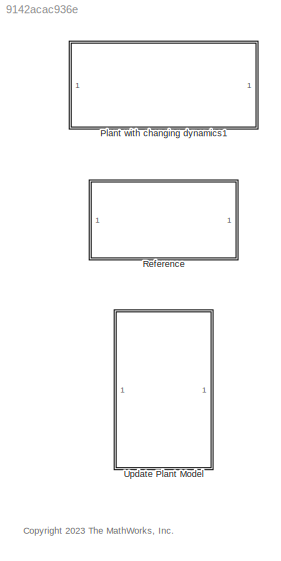
MODEL slx_9142acac936e
KIND library
CONFIG AbsTol = auto
CONFIG EnableMultiTasking = off
CONFIG FixedStep = auto
CONFIG MaxStep = auto
CONFIG MinStep = auto
CONFIG RelTol = 1e-3
CONFIG SampleTimeConstraint = Unconstrained
CONFIG SolverName = VariableStepAuto
CONFIG StartTime = 0.0
CONFIG StopTime = 10.0
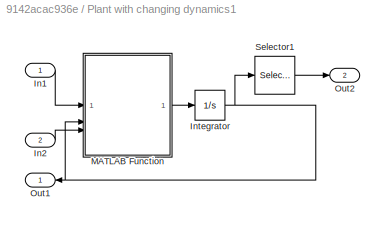
BLOCK [SubSystem] Plant with changing dynamics1
BLOCK [Inport] Plant with changing dynamics1/In1
BLOCK [Inport] Plant with changing dynamics1/In2
  Port = 2
BLOCK [Integrator] Plant with changing dynamics1/Integrator
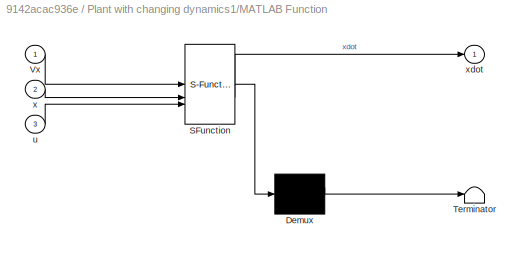
BLOCK [SubSystem] Plant with changing dynamics1/MATLAB Function
  ErrorFcn = Stateflow.Translate.translate
  PermitHierarchicalResolution = ExplicitOnly
  SFBlockType = MATLAB Function
  TreatAsAtomicUnit = on
BLOCK [Demux] Plant with changing dynamics1/MATLAB Function/ Demux 
  Outputs = 1
BLOCK [S-Function] Plant with changing dynamics1/MATLAB Function/ SFunction 
  EnableBusSupport = off
  FunctionName = sf_sfun
  PortCounts = [3 2]
  SFcnIsStateOwnerBlock = off
  SFunctionDeploymentMode = off
  Tag = Stateflow S-Function 1
BLOCK [Terminator] Plant with changing dynamics1/MATLAB Function/ Terminator 
BLOCK [Inport] Plant with changing dynamics1/MATLAB Function/Vx
BLOCK [Inport] Plant with changing dynamics1/MATLAB Function/u
  Port = 3
BLOCK [Inport] Plant with changing dynamics1/MATLAB Function/x
  Port = 2
BLOCK [Outport] Plant with changing dynamics1/MATLAB Function/xdot
  VectorParamsAs1DForOutWhenUnconnected = off
BLOCK [Outport] Plant with changing dynamics1/Out1
  NameLocation = top
  VectorParamsAs1DForOutWhenUnconnected = off
BLOCK [Outport] Plant with changing dynamics1/Out2
  NameLocation = top
  Port = 2
  VectorParamsAs1DForOutWhenUnconnected = off
BLOCK [Selector] Plant with changing dynamics1/Selector1
  IndexOptions = Index vector (dialog)
  Indices = [4 2]
  InputPortWidth = 4
  OutputSizes = 1
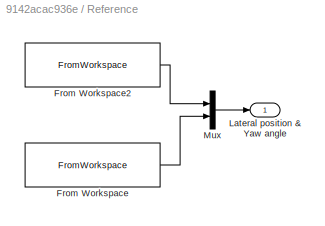
BLOCK [SubSystem] Reference
BLOCK [FromWorkspace] Reference/From Workspace
  SampleTime = 0.1
  VariableName = reference(:,[1 3])
BLOCK [FromWorkspace] Reference/From Workspace2
  SampleTime = 0.1
  VariableName = reference(:,1:2)
BLOCK [Outport] Reference/Lateral position & Yaw angle
  VectorParamsAs1DForOutWhenUnconnected = off
BLOCK [Mux] Reference/Mux
  DisplayOption = bar
  Inputs = 2
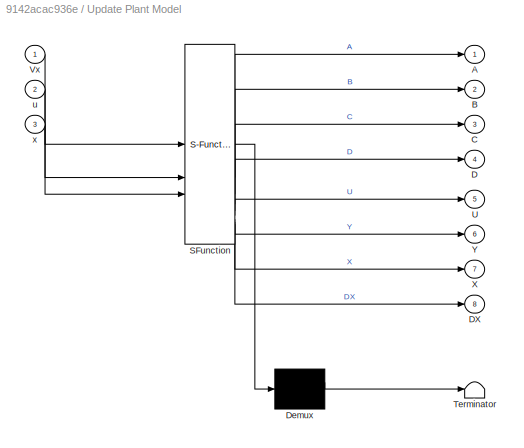
BLOCK [SubSystem] Update Plant Model
  ErrorFcn = Stateflow.Translate.translate
  PermitHierarchicalResolution = ExplicitOnly
  SFBlockType = MATLAB Function
  TreatAsAtomicUnit = on
BLOCK [Demux] Update Plant Model/ Demux 
  Outputs = 1
BLOCK [S-Function] Update Plant Model/ SFunction 
  EnableBusSupport = off
  FunctionName = sf_sfun
  PortCounts = [3 9]
  SFcnIsStateOwnerBlock = off
  SFunctionDeploymentMode = off
  Tag = Stateflow S-Function 2
BLOCK [Terminator] Update Plant Model/ Terminator 
BLOCK [Outport] Update Plant Model/A
  VectorParamsAs1DForOutWhenUnconnected = off
BLOCK [Outport] Update Plant Model/B
  Port = 2
  VectorParamsAs1DForOutWhenUnconnected = off
BLOCK [Outport] Update Plant Model/C
  Port = 3
  VectorParamsAs1DForOutWhenUnconnected = off
BLOCK [Outport] Update Plant Model/D
  Port = 4
  VectorParamsAs1DForOutWhenUnconnected = off
BLOCK [Outport] Update Plant Model/DX
  Port = 8
  VectorParamsAs1DForOutWhenUnconnected = off
BLOCK [Outport] Update Plant Model/U
  Port = 5
  VectorParamsAs1DForOutWhenUnconnected = off
BLOCK [Inport] Update Plant Model/Vx
BLOCK [Outport] Update Plant Model/X
  Port = 7
  VectorParamsAs1DForOutWhenUnconnected = off
BLOCK [Outport] Update Plant Model/Y
  Port = 6
  VectorParamsAs1DForOutWhenUnconnected = off
BLOCK [Inport] Update Plant Model/u
  Port = 2
BLOCK [Inport] Update Plant Model/x
  Port = 3
ANNOTATION (root): <copyright redacted>
LINE Plant with changing dynamics1/In1:1 -> Plant with changing dynamics1/MATLAB Function:1
LINE Plant with changing dynamics1/In2:1 -> Plant with changing dynamics1/MATLAB Function:3
NET Plant with changing dynamics1/Integrator:1 -> Plant with changing dynamics1/MATLAB Function:2, Plant with changing dynamics1/Out1:1, Plant with changing dynamics1/Selector1:1
LINE Plant with changing dynamics1/MATLAB Function:1 -> Plant with changing dynamics1/Integrator:1
LINE Plant with changing dynamics1/Selector1:1 -> Plant with changing dynamics1/Out2:1
LINE Reference/From Workspace2:1 -> Reference/Mux:1
LINE Reference/From Workspace:1 -> Reference/Mux:2
LINE Reference/Mux:1 -> Reference/Lateral position & Yaw angle:1
note: NET lines group one-source signal fan-out (src -> all destinations, sorted); 1:1 wires keep LINE
CHART Plant with
changing dynamics1/MATLAB Function states=1 transitions=1
  STATE_LABEL 'eML_blk_kernel()'
  STATE_LABEL "SCRIPT:\nfunction xdot = fcn(Vx,x,u)\n\n% Model parameters\nm = 1575;\nIz = 2875;\nlf = 1.2;\nlr = 1.6;\nCf = 19000;\nCr = 33000;\n\n% Continuous-time model\nA = [-(2*Cf+2*Cr)/m/Vx, 0, -Vx-(2*Cf*lf-2*Cr*lr)/m/Vx, 0;\n     0, 0, 1, 0;\n     -(2*Cf*lf-2*Cr*lr)/Iz/Vx, 0, -(2*Cf*lf^2+2*Cr*lr^2)/Iz/Vx, 0;\n     1, Vx, 0, 0];\nB = [2*Cf/m 0 2*Cf*lf/Iz 0]';   \nC = [0 0 0 1; 0 1 0 0];\nD = zeros(2,1);\nxdot = A*x + B*u;\n%y...<+14ch>"
CHART Update Plant Model states=1 transitions=1
  STATE_LABEL 'eML_blk_kernel()'
  STATE_LABEL "SCRIPT:\nfunction [A,B,C,D,U,Y,X,DX] = fcn(Vx,u,x)\n% Sample time\nTs = 0.1;\n\n% Model parameters\nm = 1575;\nIz = 2875;\nlf = 1.2;\nlr = 1.6;\nCf = 19000;\nCr = 33000;\n\n% Continuous-time model\nAc = [-(2*Cf+2*Cr)/m/Vx, 0, -Vx-(2*Cf*lf-2*Cr*lr)/m/Vx, 0;\n     0, 0, 1, 0;\n     -(2*Cf*lf-2*Cr*lr)/Iz/Vx, 0, -(2*Cf*lf^2+2*Cr*lr^2)/Iz/Vx, 0;\n     1, Vx, 0, 0];\nBc = [2*Cf/m 0 2*Cf*lf/Iz 0]';   \nCc = [0 0 0 1; 0 1 0...<+357ch>"
CHART  states=0 transitions=0
CHART  states=0 transitions=0
